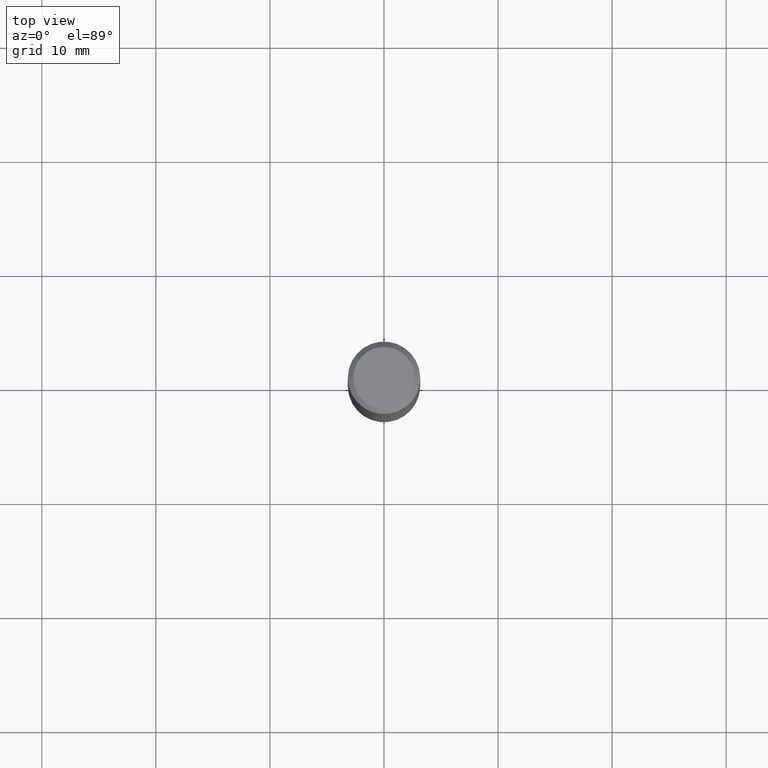
[diagram: clean part render]
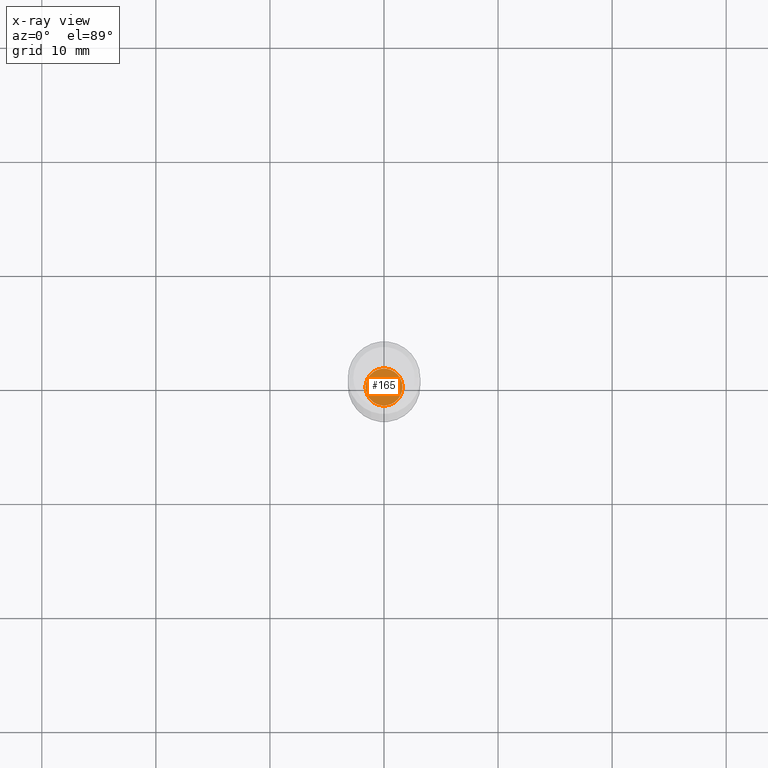
[diagram: x-ray — body ghosted, one internal face saturated and labeled with its STEP entity id]
A machine part, top view, then the same camera in x-ray: the body is ghosted and one INTERNAL B-rep face — a face not visible from any outside direction — is saturated and labeled: STEP entity #165.
In plain terms, the highlighted planar face has unit normal (-0, 0, 1).
Its self-contained STEP definition (entity closure, byte-faithful):
#1 = CARTESIAN_POINT ( 'NONE',  ( 4.593813152418779608E-29, -6.558747695016850021E-15, -1.878500000000000281 ) ) ;
#10 = AXIS2_PLACEMENT_3D ( 'NONE', #38, #298, #337 ) ;
#38 = CARTESIAN_POINT ( 'NONE',  ( 4.593813152418779608E-29, -6.558747695016850021E-15, -1.878500000000000281 ) ) ;
#42 = DIRECTION ( 'NONE',  ( -2.438088387897960049E-29, 3.491481338843145188E-15, 1.000000000000000000 ) ) ;
#73 = EDGE_CURVE ( 'NONE', #451, #330, #205, .T. ) ;
#87 = CARTESIAN_POINT ( 'NONE',  ( -0.06375000000000000111, -6.103127473795674352E-15, -1.878500000000000281 ) ) ;
#106 = DIRECTION ( 'NONE',  ( -2.445468806185136597E-29, 3.491481338843145583E-15, 1.000000000000000000 ) ) ;
#110 = FACE_OUTER_BOUND ( 'NONE', #128, .T. ) ;
#118 = DIRECTION ( 'NONE',  ( 1.000000000000000000, -6.982962677686265922E-15, 4.876176775795935793E-29 ) ) ;
#128 = EDGE_LOOP ( 'NONE', ( #477, #174 ) ) ;
#139 = CIRCLE ( 'NONE', #199, 0.06375000000000000111 ) ;
#165 = ADVANCED_FACE ( 'NONE', ( #110 ), #420, .F. ) ;
#174 = ORIENTED_EDGE ( 'NONE', *, *, #196, .F. ) ;
#196 = EDGE_CURVE ( 'NONE', #330, #451, #139, .T. ) ;
#199 = AXIS2_PLACEMENT_3D ( 'NONE', #1, #106, #343 ) ;
#205 = CIRCLE ( 'NONE', #10, 0.06375000000000000111 ) ;
#221 = CARTESIAN_POINT ( 'NONE',  ( 4.593813152418779608E-29, -6.558747695016850021E-15, -1.878500000000000281 ) ) ;
#298 = DIRECTION ( 'NONE',  ( -2.445468806185136597E-29, 3.491481338843145583E-15, 1.000000000000000000 ) ) ;
#330 = VERTEX_POINT ( 'NONE', #87 ) ;
#337 = DIRECTION ( 'NONE',  ( 1.000000000000000000, -6.982962677686260400E-15, 0.000000000000000000 ) ) ;
#343 = DIRECTION ( 'NONE',  ( 1.000000000000000000, -6.982962677686260400E-15, 0.000000000000000000 ) ) ;
#375 = CARTESIAN_POINT ( 'NONE',  ( 0.06375000000000000111, -7.003911565719349208E-15, -1.878500000000000281 ) ) ;
#420 = PLANE ( 'NONE',  #465 ) ;
#451 = VERTEX_POINT ( 'NONE', #375 ) ;
#465 = AXIS2_PLACEMENT_3D ( 'NONE', #221, #42, #118 ) ;
#477 = ORIENTED_EDGE ( 'NONE', *, *, #73, .F. ) ;